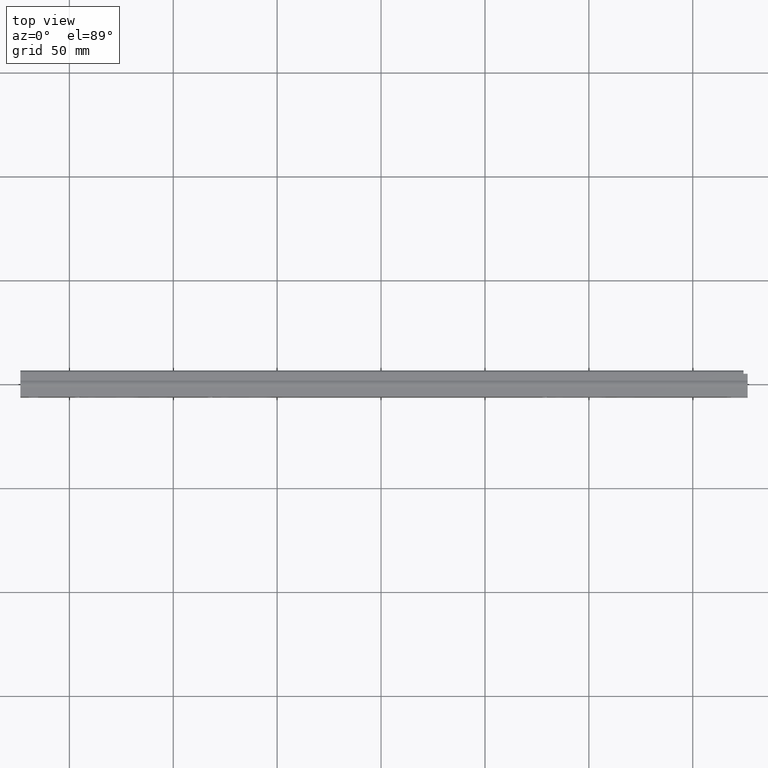
[diagram: clean part render]
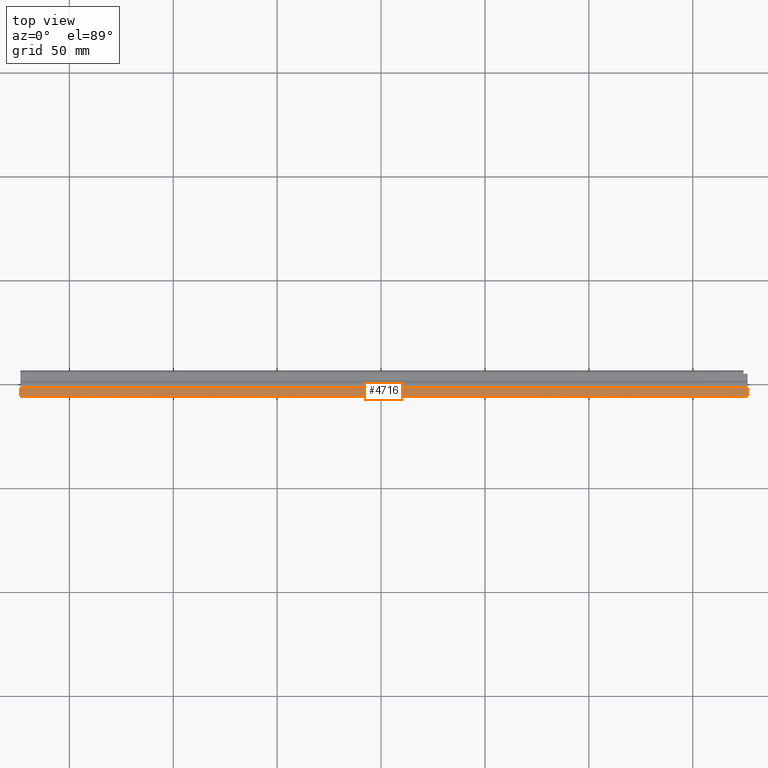
[diagram: same view with one face highlighted and labeled with its STEP entity id]
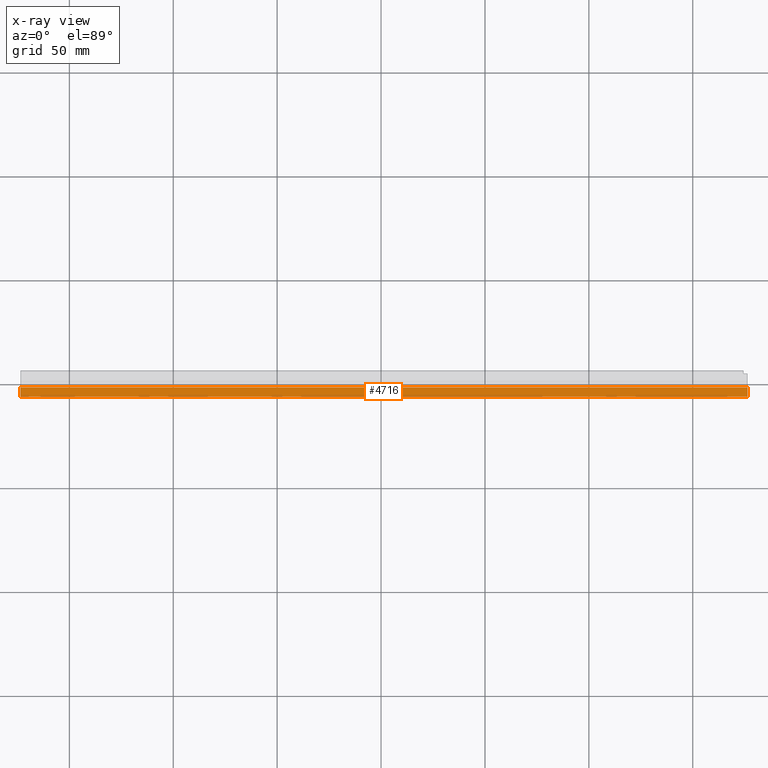
[diagram: x-ray of the same camera — body ghosted, the highlighted face saturated]
A machine part, top view. The second image highlights one B-rep face of the part: STEP entity #4716.
The next image is the same camera in x-ray: the body ghosted, the highlighted face saturated — about 0% of this face is hidden behind the body in this view.
In plain terms, the highlighted planar face has unit normal (0, 0, 1).
Its self-contained STEP definition (entity closure, byte-faithful):
#315=FACE_OUTER_BOUND('',#594,.T.);
#594=EDGE_LOOP('',(#3698,#3699,#3700,#3701));
#850=LINE('',#6949,#1348);
#898=LINE('',#7116,#1396);
#989=LINE('',#7310,#1487);
#996=LINE('',#7327,#1494);
#1348=VECTOR('',#5522,350.);
#1396=VECTOR('',#5644,4.35);
#1487=VECTOR('',#5907,4.35);
#1494=VECTOR('',#5920,350.);
#2060=VERTEX_POINT('',#6946);
#2061=VERTEX_POINT('',#6948);
#2143=VERTEX_POINT('',#7114);
#2160=VERTEX_POINT('',#7309);
#2540=EDGE_CURVE('',#2061,#2060,#850,.T.);
#2624=EDGE_CURVE('',#2143,#2060,#898,.T.);
#2719=EDGE_CURVE('',#2061,#2160,#989,.T.);
#2728=EDGE_CURVE('',#2160,#2143,#996,.T.);
#3698=ORIENTED_EDGE('',*,*,#2540,.T.);
#3699=ORIENTED_EDGE('',*,*,#2624,.F.);
#3700=ORIENTED_EDGE('',*,*,#2728,.F.);
#3701=ORIENTED_EDGE('',*,*,#2719,.F.);
#4523=PLANE('',#5055);
#4716=ADVANCED_FACE('',(#315),#4523,.T.);
#5055=AXIS2_PLACEMENT_3D('',#7326,#5918,#5919);
#5522=DIRECTION('',(1.,0.,0.));
#5644=DIRECTION('',(0.,-1.,0.));
#5907=DIRECTION('',(0.,1.,0.));
#5918=DIRECTION('center_axis',(0.,0.,1.));
#5919=DIRECTION('ref_axis',(0.,-1.,0.));
#5920=DIRECTION('',(1.,0.,0.));
#6946=CARTESIAN_POINT('',(175.,5.20474889637625E-15,17.));
#6948=CARTESIAN_POINT('',(-175.,5.20474889637625E-15,17.));
#6949=CARTESIAN_POINT('',(0.,5.20474889637625E-15,17.));
#7114=CARTESIAN_POINT('',(175.,4.35000000000001,17.));
#7116=CARTESIAN_POINT('',(175.,4.35000000000001,17.));
#7309=CARTESIAN_POINT('',(-175.,4.35000000000001,17.));
#7310=CARTESIAN_POINT('',(-175.,4.35000000000001,17.));
#7326=CARTESIAN_POINT('Origin',(0.,4.35000000000001,17.));
#7327=CARTESIAN_POINT('',(0.,4.35000000000001,17.));